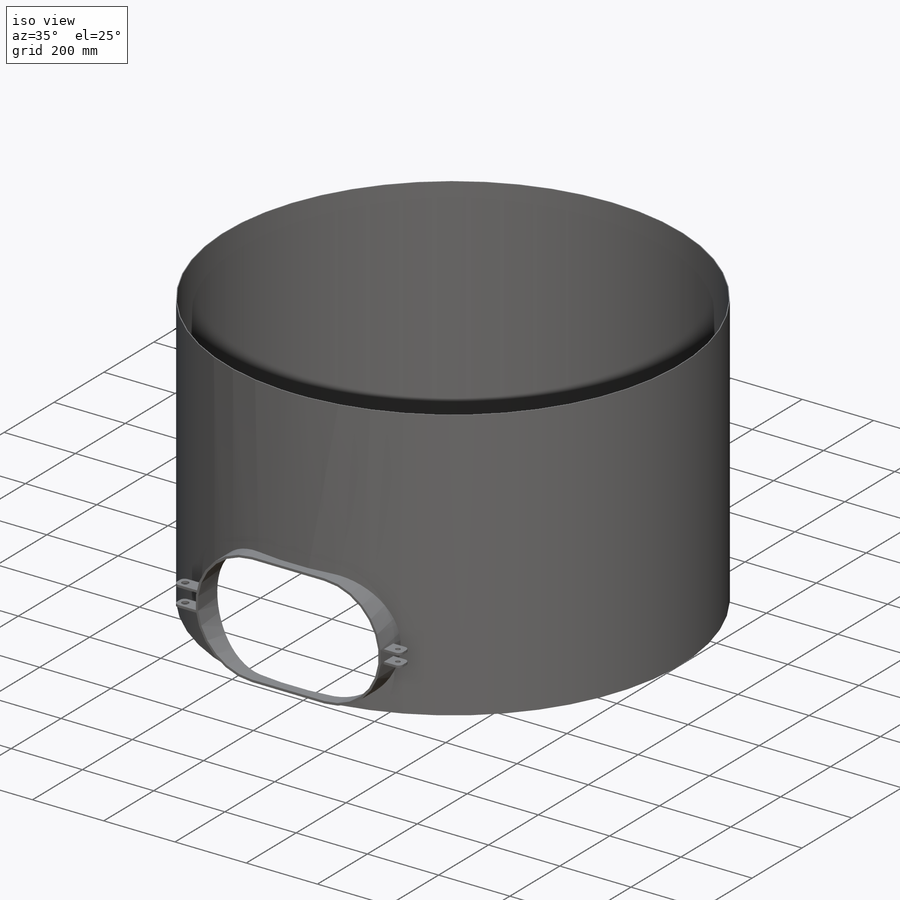
[diagram: iso view]
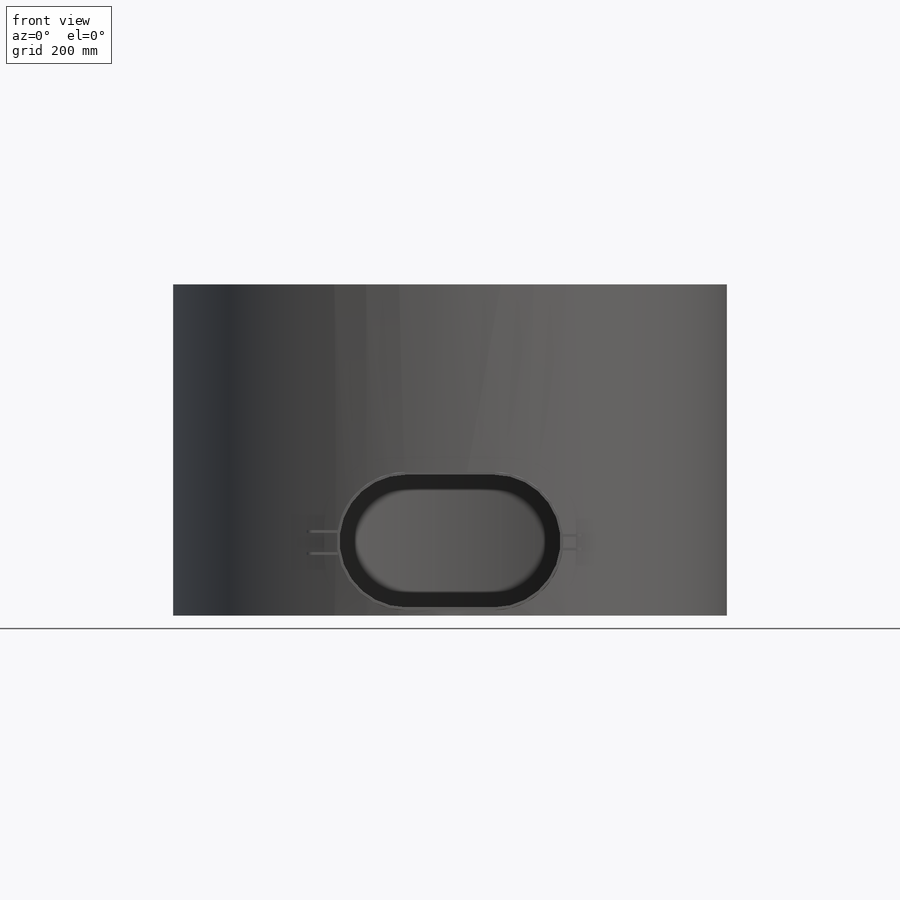
[diagram: front view]
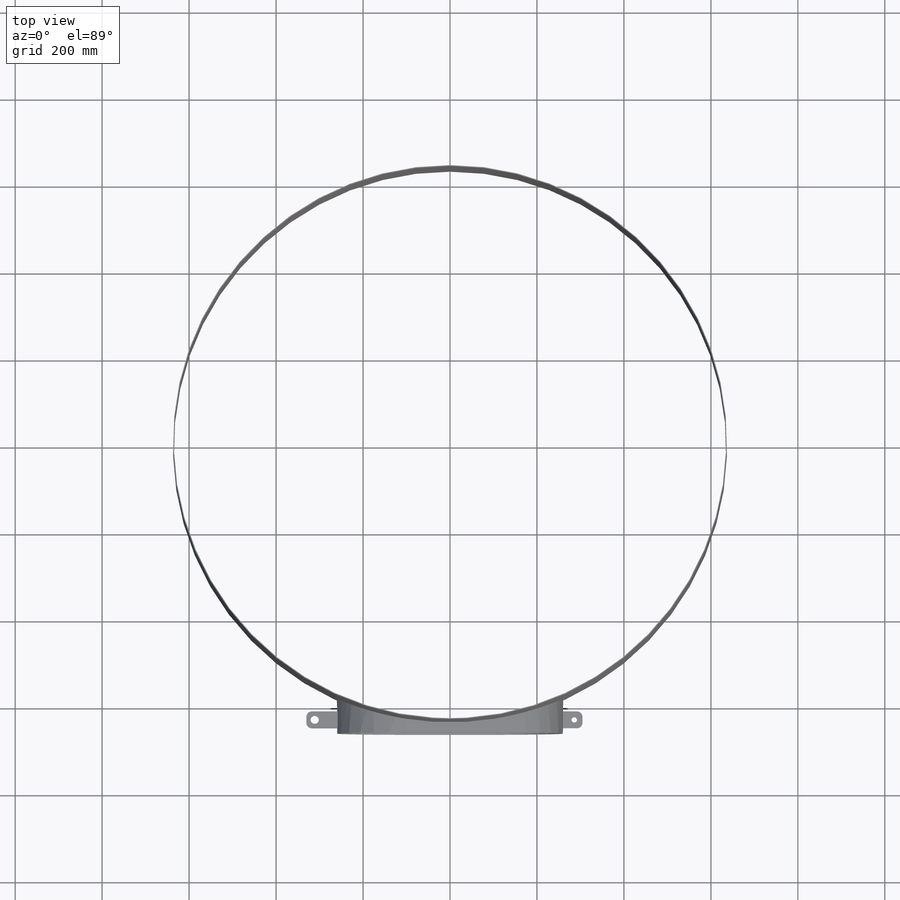
[diagram: top view]
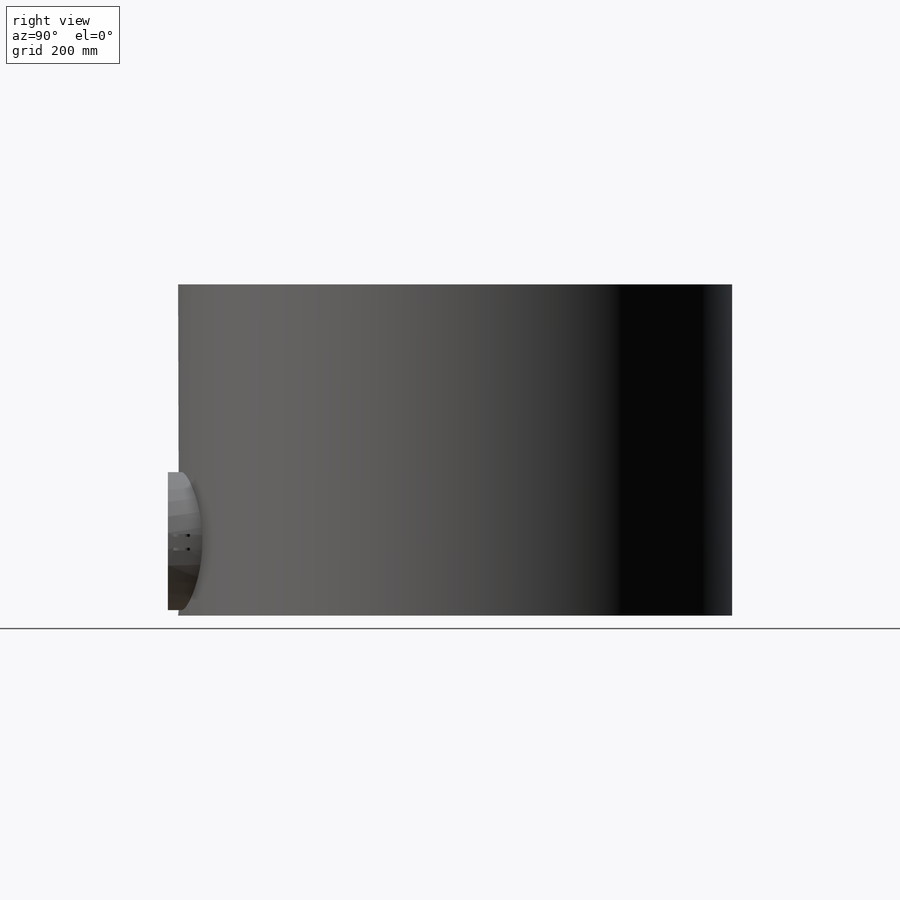
[diagram: right view]
SOLIDWORKS PART (.sldprt)
format: sldprt  version: not decoded by parser v0  size: 441,856 bytes
history: native  units: mm
features: sketch x8, extrude x4, cut_extrude x4, plane x3, fillet x2, material x1 (+16 scaffold rows collapsed)
feature tree (38):
  scaffold x16  (default folders/planes/origin — collapsed)
  material  "Wrought Stainless Steel"
  sketch  "Sketch1"  dims[c1.D1=~156.108459mm c1.D2=1270.0mm c2.D1=~1.98374mm]
  extrude  "Boss-Extrude1"  Depth=762mm
  plane  "Plane1"  Offset=558.8mm
  sketch  "Sketch3"  dims[c1.D3=146.05mm c1.D6=155.575mm c1.D1=508.0mm c1.D2=304.8mm c1.D4=12.7mm c2.D1=304.8mm c2.D2=203.2mm c2.D3=6.35mm c2.D5=6.35mm c2.D6=203.2mm c2.D7=317.5mm c2.D4=12.7mm]
  extrude  "Boss-Extrude2"  Depth=101.6mm
  sketch  "Sketch5"
  cut_extrude  "Cut-Extrude2"  [1 undecoded]
  plane  "Plane2"  Offset=228.6mm
  plane  "Plane3"  Offset=228.6mm
  sketch  "Sketch7"  dims[c1.D1=38.1mm c1.D2=38.1mm c1.D3=6.35mm c1.D4=6.35mm c1.D5=133.35mm c1.D6=127.0mm c1.D7=12.7mm c1.D8=12.7mm c2.D6=44.45mm]
  extrude  "Boss-Extrude3"  Depth=101.6mm
  sketch  "Sketch8"  dims[D1=19.05mm D2=19.05mm D3=19.05mm]
  cut_extrude  "Cut-Extrude3"  Depth=76.2mm
  fillet  "Fillet1"  Radius=12.7mm
  sketch  "Sketch9"  dims[D1=12.7mm D2=6.35mm D3=6.35mm D4=38.1mm D5=38.1mm D6=25.4mm D7=142.24mm]
  extrude  "Boss-Extrude4"  Depth=76.2mm
  sketch  "Sketch4"
  cut_extrude  "Cut-Extrude1"  Depth=101.6mm
  sketch  "Sketch10"  dims[D1=12.7mm D2=19.05mm D3=19.05mm]
  cut_extrude  "Cut-Extrude4"  [1 undecoded]
  fillet  "Fillet2"  Radius=12.7mm
decode coverage: 14 of 18 modeling features carry decoded parameters
note: ~ marks probable driven/reference dimensions
note: 2 parameter values undecoded
note: suppression state not decoded; provenance and decode notes live in map.json
